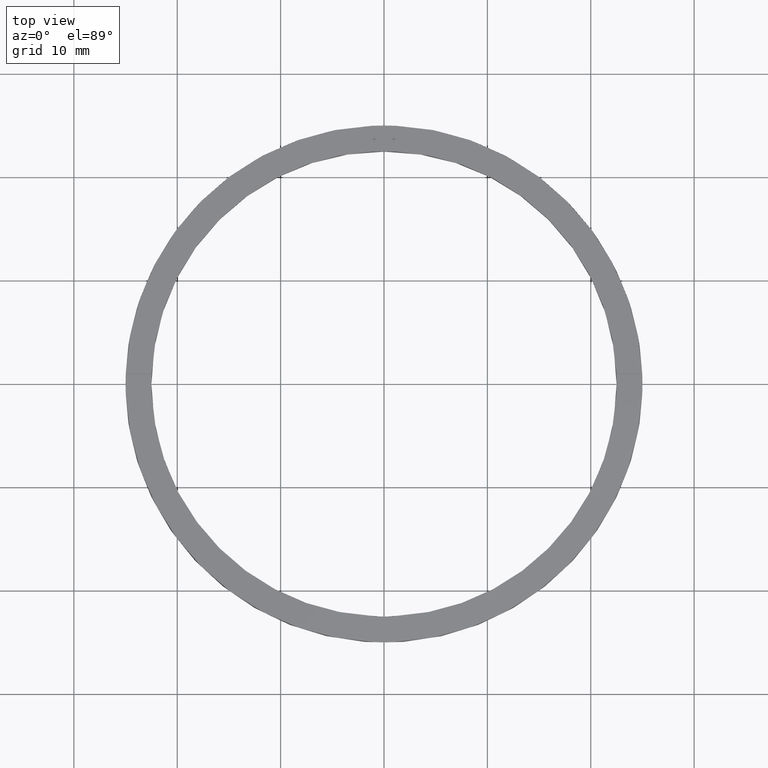
[diagram: clean part render]
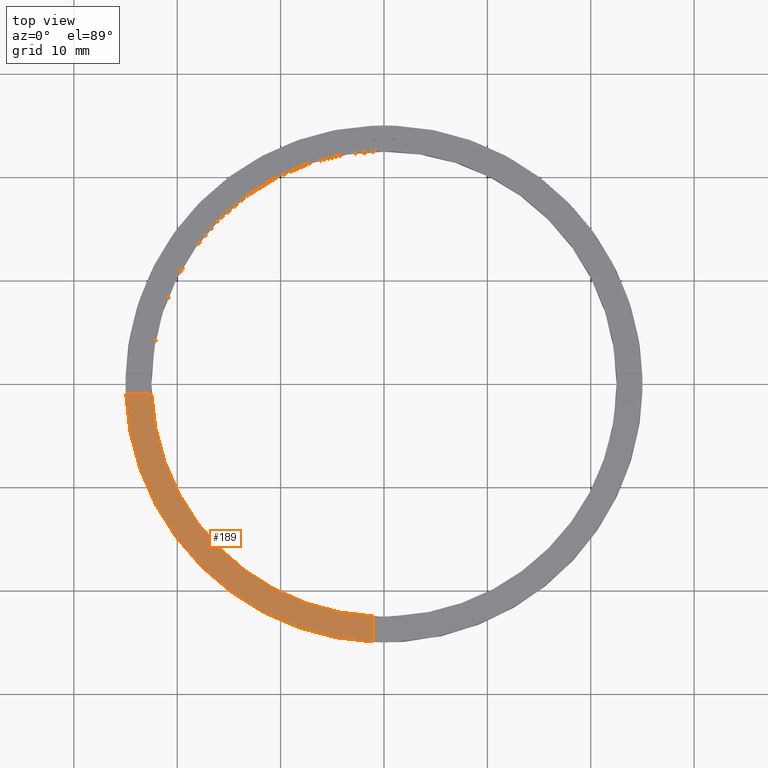
[diagram: same view with one face highlighted and labeled with its STEP entity id]
A machine part, top view. The second image highlights one B-rep face of the part: STEP entity #189.
In plain terms, the highlighted planar face has unit normal (0, 0, 1).
Its self-contained STEP definition (entity closure, byte-faithful):
#29 = DIRECTION ( 'NONE',  ( 1.000000000000000000, 1.734723475976807341E-16, -0.000000000000000000 ) ) ;
#60 = DIRECTION ( 'NONE',  ( 0.000000000000000000, 0.000000000000000000, 1.000000000000000000 ) ) ;
#116 = CARTESIAN_POINT ( 'NONE',  ( -22.47776679298902636, -1.000000000000025535, 2.500000000000000000 ) ) ;
#117 = CARTESIAN_POINT ( 'NONE',  ( 0.000000000000000000, 0.000000000000000000, 2.500000000000000000 ) ) ;
#131 = EDGE_CURVE ( 'NONE', #223, #135, #418, .T. ) ;
#135 = VERTEX_POINT ( 'NONE', #723 ) ;
#140 = DIRECTION ( 'NONE',  ( 0.000000000000000000, 0.000000000000000000, 1.000000000000000000 ) ) ;
#143 = AXIS2_PLACEMENT_3D ( 'NONE', #286, #60, #225 ) ;
#165 = CIRCLE ( 'NONE', #589, 25.00000000000000000 ) ;
#185 = EDGE_CURVE ( 'NONE', #564, #526, #165, .T. ) ;
#189 = ADVANCED_FACE ( 'NONE', ( #690 ), #647, .T. ) ;
#216 = LINE ( 'NONE', #669, #449 ) ;
#223 = VERTEX_POINT ( 'NONE', #116 ) ;
#225 = DIRECTION ( 'NONE',  ( 1.000000000000000000, 0.000000000000000000, -0.000000000000000000 ) ) ;
#271 = ORIENTED_EDGE ( 'NONE', *, *, #630, .F. ) ;
#273 = DIRECTION ( 'NONE',  ( 1.301042606982605321E-16, -1.000000000000000000, 0.000000000000000000 ) ) ;
#277 = ORIENTED_EDGE ( 'NONE', *, *, #444, .F. ) ;
#286 = CARTESIAN_POINT ( 'NONE',  ( 0.000000000000000000, 0.000000000000000000, 2.500000000000000000 ) ) ;
#288 = AXIS2_PLACEMENT_3D ( 'NONE', #117, #650, #552 ) ;
#418 = CIRCLE ( 'NONE', #288, 22.50000000000000355 ) ;
#444 = EDGE_CURVE ( 'NONE', #135, #526, #216, .T. ) ;
#449 = VECTOR ( 'NONE', #273, 1000.000000000000000 ) ;
#452 = CARTESIAN_POINT ( 'NONE',  ( 0.000000000000000000, 0.000000000000000000, 2.500000000000000000 ) ) ;
#493 = CARTESIAN_POINT ( 'NONE',  ( -15.00000000000018652, -1.000000000000024203, 2.500000000000000000 ) ) ;
#495 = EDGE_LOOP ( 'NONE', ( #277, #698, #271, #700 ) ) ;
#526 = VERTEX_POINT ( 'NONE', #597 ) ;
#552 = DIRECTION ( 'NONE',  ( 1.000000000000000000, 0.000000000000000000, 0.000000000000000000 ) ) ;
#564 = VERTEX_POINT ( 'NONE', #607 ) ;
#570 = VECTOR ( 'NONE', #29, 1000.000000000000000 ) ;
#589 = AXIS2_PLACEMENT_3D ( 'NONE', #452, #140, #692 ) ;
#597 = CARTESIAN_POINT ( 'NONE',  ( -1.000000000000160538, -24.97999199359358968, 2.500000000000000000 ) ) ;
#607 = CARTESIAN_POINT ( 'NONE',  ( -24.97999199359359679, -1.000000000000025979, 2.500000000000000000 ) ) ;
#630 = EDGE_CURVE ( 'NONE', #564, #223, #717, .T. ) ;
#647 = PLANE ( 'NONE',  #143 ) ;
#650 = DIRECTION ( 'NONE',  ( 0.000000000000000000, 0.000000000000000000, 1.000000000000000000 ) ) ;
#669 = CARTESIAN_POINT ( 'NONE',  ( -1.000000000000161871, -15.00000000000018119, 2.500000000000000000 ) ) ;
#690 = FACE_OUTER_BOUND ( 'NONE', #495, .T. ) ;
#692 = DIRECTION ( 'NONE',  ( 1.000000000000000000, 0.000000000000000000, 0.000000000000000000 ) ) ;
#698 = ORIENTED_EDGE ( 'NONE', *, *, #131, .F. ) ;
#700 = ORIENTED_EDGE ( 'NONE', *, *, #185, .T. ) ;
#717 = LINE ( 'NONE', #493, #570 ) ;
#723 = CARTESIAN_POINT ( 'NONE',  ( -1.000000000000160982, -22.47776679298901925, 2.500000000000000000 ) ) ;